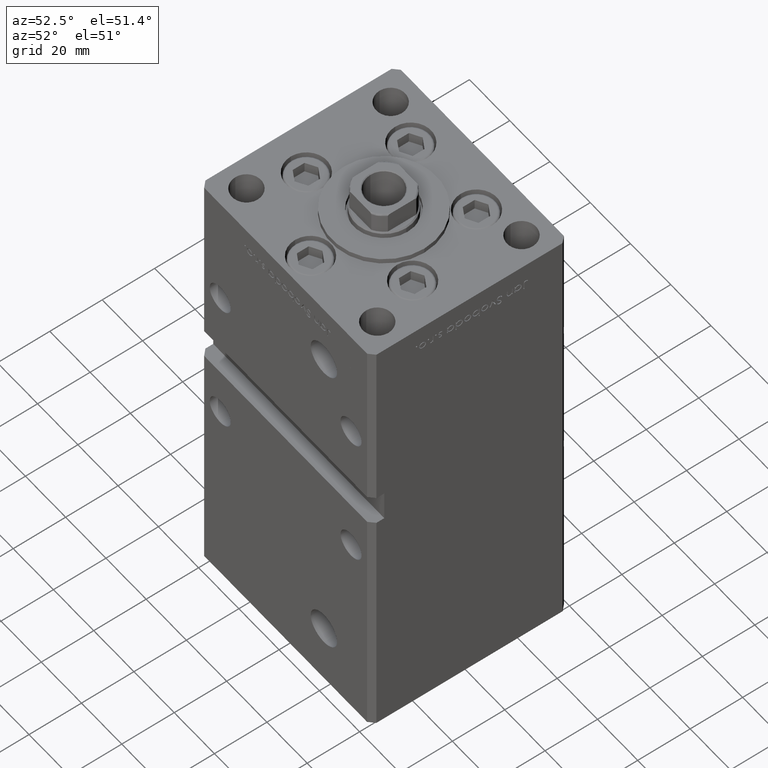
[diagram: clean part render]
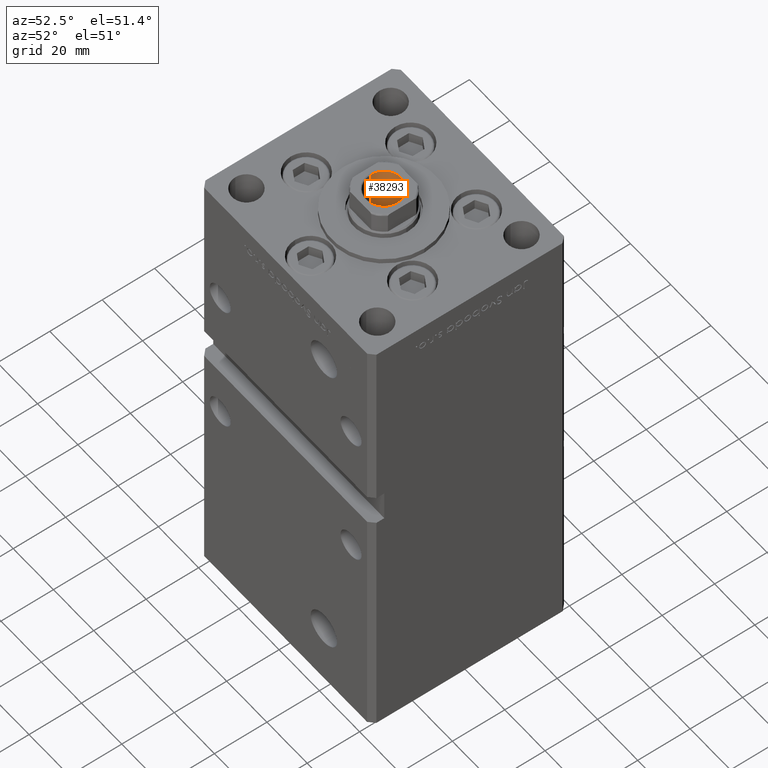
[diagram: same view with one face highlighted and labeled with its STEP entity id]
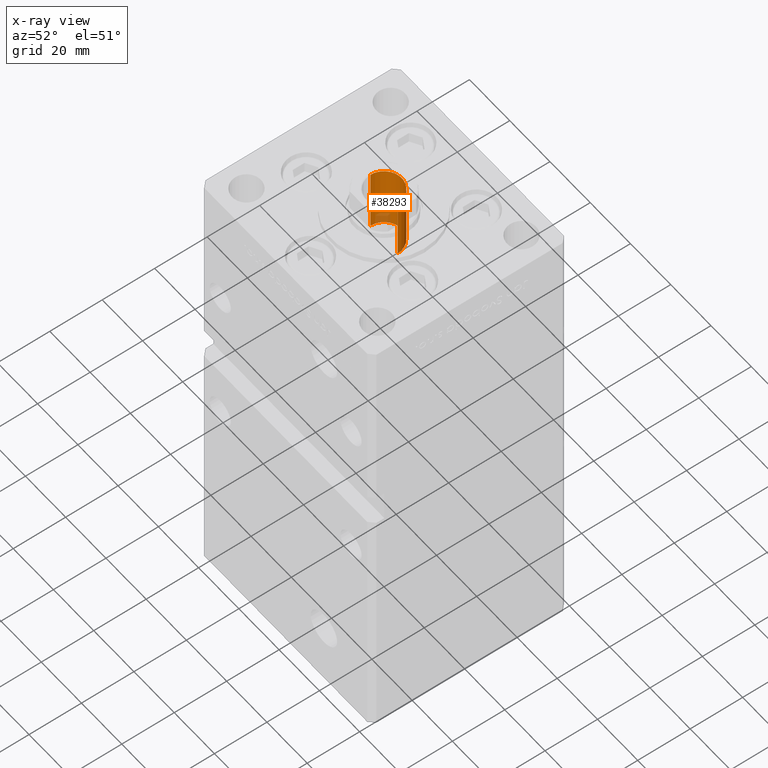
[diagram: x-ray of the same camera — body ghosted, the highlighted face saturated]
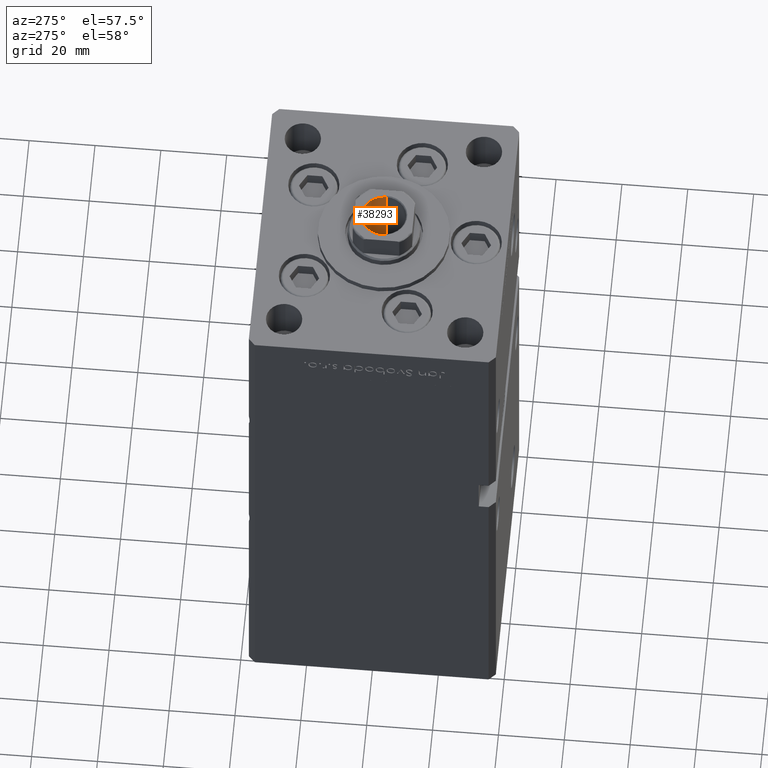
[diagram: same view with one face highlighted and labeled with its STEP entity id]
A machine part, auxiliary view. The second image highlights one B-rep face of the part: STEP entity #38293.
The next image is the same camera in x-ray: the body ghosted, the highlighted face saturated — about 7% of this face is hidden behind the body in this view.
A second angle (auxiliary view) of the same face is appended — the face is thin or edge-on in the first view.
In plain terms, the highlighted cylindrical surface (edge-blend (fillet) strip) has radius 6.75 mm, axis along (0, 0, 1).
Its self-contained STEP definition (entity closure, byte-faithful):
#4032 = CIRCLE ( 'NONE', #38390, 6.749999999999995559 ) ;
#5576 = CARTESIAN_POINT ( 'NONE',  ( -6.749999999999995559, 8.266365894244628417E-16, 155.7500000000000000 ) ) ;
#6052 = DIRECTION ( 'NONE',  ( 1.000000000000000000, 0.000000000000000000, 0.000000000000000000 ) ) ;
#7571 = CARTESIAN_POINT ( 'NONE',  ( 6.749999999999995559, 0.000000000000000000, 155.4499999999999886 ) ) ;
#8575 = EDGE_CURVE ( 'NONE', #32925, #31934, #10929, .T. ) ;
#10929 = LINE ( 'NONE', #5576, #50156 ) ;
#11020 = CYLINDRICAL_SURFACE ( 'NONE', #29448, 6.749999999999995559 ) ;
#11826 = DIRECTION ( 'NONE',  ( 1.000000000000000000, 0.000000000000000000, 0.000000000000000000 ) ) ;
#12231 = ORIENTED_EDGE ( 'NONE', *, *, #21116, .T. ) ;
#13026 = CARTESIAN_POINT ( 'NONE',  ( -6.749999999999993783, 8.266365894244626445E-16, 130.7500000000000000 ) ) ;
#14928 = DIRECTION ( 'NONE',  ( 1.000000000000000000, 0.000000000000000000, 0.000000000000000000 ) ) ;
#16007 = VERTEX_POINT ( 'NONE', #42393 ) ;
#16877 = CARTESIAN_POINT ( 'NONE',  ( -6.749999999999995559, 8.266365894244628417E-16, 155.4499999999999886 ) ) ;
#21116 = EDGE_CURVE ( 'NONE', #37941, #31934, #4032, .T. ) ;
#21791 = AXIS2_PLACEMENT_3D ( 'NONE', #39139, #42911, #6052 ) ;
#21990 = DIRECTION ( 'NONE',  ( -0.000000000000000000, -0.000000000000000000, 1.000000000000000000 ) ) ;
#23272 = DIRECTION ( 'NONE',  ( 0.000000000000000000, 0.000000000000000000, 1.000000000000000000 ) ) ;
#23688 = ORIENTED_EDGE ( 'NONE', *, *, #8575, .F. ) ;
#29448 = AXIS2_PLACEMENT_3D ( 'NONE', #43849, #44114, #11826 ) ;
#30641 = ORIENTED_EDGE ( 'NONE', *, *, #45170, .F. ) ;
#31862 = VECTOR ( 'NONE', #50739, 1000.000000000000000 ) ;
#31934 = VERTEX_POINT ( 'NONE', #16877 ) ;
#32925 = VERTEX_POINT ( 'NONE', #13026 ) ;
#34093 = EDGE_CURVE ( 'NONE', #16007, #37941, #46964, .T. ) ;
#34490 = ORIENTED_EDGE ( 'NONE', *, *, #34093, .T. ) ;
#34864 = CARTESIAN_POINT ( 'NONE',  ( 6.749999999999995559, 0.000000000000000000, 155.7500000000000000 ) ) ;
#35375 = CARTESIAN_POINT ( 'NONE',  ( 0.000000000000000000, 0.000000000000000000, 155.4499999999999886 ) ) ;
#37941 = VERTEX_POINT ( 'NONE', #7571 ) ;
#38293 = ADVANCED_FACE ( 'NONE', ( #48403 ), #11020, .F. ) ;
#38390 = AXIS2_PLACEMENT_3D ( 'NONE', #35375, #23272, #14928 ) ;
#39139 = CARTESIAN_POINT ( 'NONE',  ( 0.000000000000000000, 0.000000000000000000, 130.7500000000000000 ) ) ;
#41644 = CIRCLE ( 'NONE', #21791, 6.749999999999993783 ) ;
#42393 = CARTESIAN_POINT ( 'NONE',  ( 6.749999999999993783, 0.000000000000000000, 130.7500000000000000 ) ) ;
#42911 = DIRECTION ( 'NONE',  ( -0.000000000000000000, -0.000000000000000000, 1.000000000000000000 ) ) ;
#43830 = EDGE_LOOP ( 'NONE', ( #23688, #30641, #34490, #12231 ) ) ;
#43849 = CARTESIAN_POINT ( 'NONE',  ( 0.000000000000000000, 0.000000000000000000, 155.7500000000000000 ) ) ;
#44114 = DIRECTION ( 'NONE',  ( -0.000000000000000000, -0.000000000000000000, 1.000000000000000000 ) ) ;
#45170 = EDGE_CURVE ( 'NONE', #16007, #32925, #41644, .T. ) ;
#46964 = LINE ( 'NONE', #34864, #31862 ) ;
#48403 = FACE_OUTER_BOUND ( 'NONE', #43830, .T. ) ;
#50156 = VECTOR ( 'NONE', #21990, 1000.000000000000000 ) ;
#50739 = DIRECTION ( 'NONE',  ( -0.000000000000000000, -0.000000000000000000, 1.000000000000000000 ) ) ;